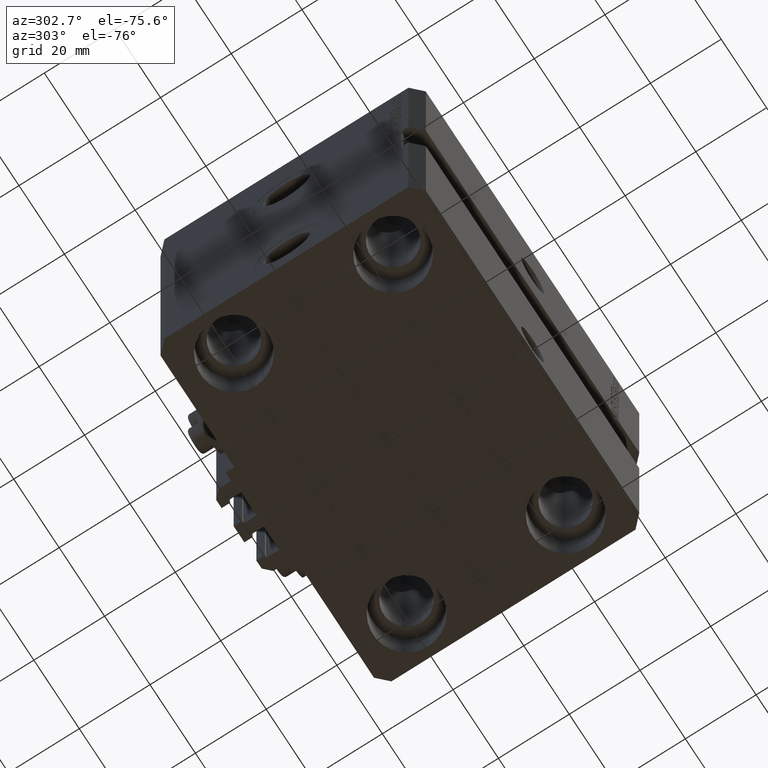
[diagram: clean part render]
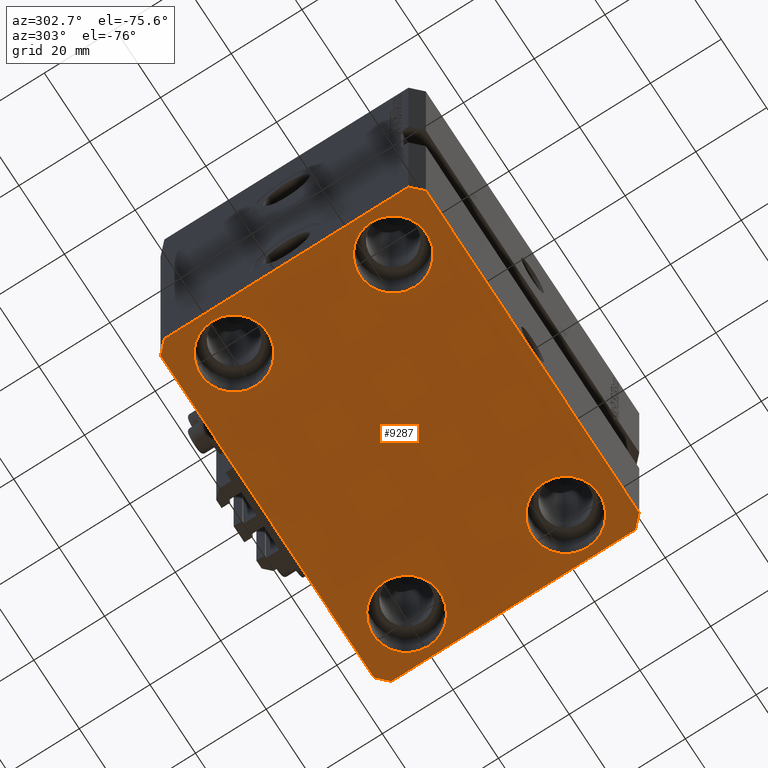
[diagram: same view with one face highlighted and labeled with its STEP entity id]
A machine part, auxiliary view. The second image highlights one B-rep face of the part: STEP entity #9287.
In plain terms, the highlighted planar face has unit normal (0, 0, 1).
Its self-contained STEP definition (entity closure, byte-faithful):
#60 = CIRCLE ( 'NONE', #37766, 9.500000000000001776 ) ;
#338 = CIRCLE ( 'NONE', #12662, 9.500000000000001776 ) ;
#417 = CARTESIAN_POINT ( 'NONE',  ( 50.00000000000000000, -34.50000000000000711, -95.00000000000000000 ) ) ;
#858 = EDGE_CURVE ( 'NONE', #11817, #13568, #9110, .T. ) ;
#1556 = CARTESIAN_POINT ( 'NONE',  ( -47.00000000000000000, -37.49999999999999289, -95.00000000000000000 ) ) ;
#1918 = EDGE_CURVE ( 'NONE', #29392, #29886, #8063, .T. ) ;
#2464 = DIRECTION ( 'NONE',  ( -0.000000000000000000, -0.000000000000000000, 1.000000000000000000 ) ) ;
#2788 = EDGE_CURVE ( 'NONE', #7448, #11817, #37458, .T. ) ;
#2796 = CARTESIAN_POINT ( 'NONE',  ( -38.00000000000000711, 22.50000000000000000, -95.00000000000000000 ) ) ;
#3186 = ORIENTED_EDGE ( 'NONE', *, *, #45625, .T. ) ;
#3401 = ORIENTED_EDGE ( 'NONE', *, *, #39046, .F. ) ;
#3502 = CARTESIAN_POINT ( 'NONE',  ( -38.00000000000000711, -22.50000000000000000, -95.00000000000000000 ) ) ;
#3969 = DIRECTION ( 'NONE',  ( -0.000000000000000000, -0.000000000000000000, 1.000000000000000000 ) ) ;
#4175 = VECTOR ( 'NONE', #28657, 1000.000000000000000 ) ;
#4279 = PLANE ( 'NONE',  #11616 ) ;
#4742 = CIRCLE ( 'NONE', #31675, 9.500000000000001776 ) ;
#5049 = EDGE_CURVE ( 'NONE', #38565, #16321, #60, .T. ) ;
#6074 = DIRECTION ( 'NONE',  ( 1.000000000000000000, 0.000000000000000000, 0.000000000000000000 ) ) ;
#6514 = LINE ( 'NONE', #21190, #4175 ) ;
#7412 = DIRECTION ( 'NONE',  ( 0.000000000000000000, 0.000000000000000000, 1.000000000000000000 ) ) ;
#7448 = VERTEX_POINT ( 'NONE', #33180 ) ;
#8056 = ORIENTED_EDGE ( 'NONE', *, *, #16957, .T. ) ;
#8063 = LINE ( 'NONE', #1556, #40715 ) ;
#8222 = VECTOR ( 'NONE', #8872, 1000.000000000000114 ) ;
#8525 = ORIENTED_EDGE ( 'NONE', *, *, #858, .F. ) ;
#8802 = CARTESIAN_POINT ( 'NONE',  ( 47.00000000000000000, -37.50000000000000711, -95.00000000000000000 ) ) ;
#8872 = DIRECTION ( 'NONE',  ( -0.7071067811865361374, 0.7071067811865588970, 0.000000000000000000 ) ) ;
#9110 = LINE ( 'NONE', #45982, #24515 ) ;
#9233 = VECTOR ( 'NONE', #16238, 1000.000000000000000 ) ;
#9287 = ADVANCED_FACE ( 'NONE', ( #40888, #44273, #26656, #15107, #22560 ), #4279, .F. ) ;
#9353 = CARTESIAN_POINT ( 'NONE',  ( 50.00000000000051870, 34.49999999999995026, -95.00000000000000000 ) ) ;
#9668 = DIRECTION ( 'NONE',  ( -0.000000000000000000, -0.000000000000000000, 1.000000000000000000 ) ) ;
#9712 = VERTEX_POINT ( 'NONE', #11087 ) ;
#10384 = AXIS2_PLACEMENT_3D ( 'NONE', #2796, #25810, #17477 ) ;
#10786 = CARTESIAN_POINT ( 'NONE',  ( -38.00000000000000711, -22.50000000000000000, -95.00000000000000000 ) ) ;
#10980 = EDGE_LOOP ( 'NONE', ( #14474, #40662, #11834, #3401, #36434, #45874, #8525, #13323 ) ) ;
#11087 = CARTESIAN_POINT ( 'NONE',  ( 47.50000000000000711, 22.50000000000001421, -95.00000000000000000 ) ) ;
#11616 = AXIS2_PLACEMENT_3D ( 'NONE', #11982, #7412, #41366 ) ;
#11817 = VERTEX_POINT ( 'NONE', #32368 ) ;
#11834 = ORIENTED_EDGE ( 'NONE', *, *, #45518, .F. ) ;
#11982 = CARTESIAN_POINT ( 'NONE',  ( 0.000000000000000000, 0.000000000000000000, -95.00000000000000000 ) ) ;
#12269 = DIRECTION ( 'NONE',  ( 1.000000000000000000, 0.000000000000000000, 0.000000000000000000 ) ) ;
#12662 = AXIS2_PLACEMENT_3D ( 'NONE', #16647, #9668, #31340 ) ;
#12686 = AXIS2_PLACEMENT_3D ( 'NONE', #10786, #31231, #45461 ) ;
#12962 = DIRECTION ( 'NONE',  ( 2.011273595335428326E-16, -1.000000000000000000, 0.000000000000000000 ) ) ;
#12984 = CARTESIAN_POINT ( 'NONE',  ( -47.50000000000000711, 22.50000000000000000, -95.00000000000000000 ) ) ;
#13057 = CARTESIAN_POINT ( 'NONE',  ( -38.00000000000000711, 22.50000000000000000, -95.00000000000000000 ) ) ;
#13133 = EDGE_CURVE ( 'NONE', #20686, #7448, #6514, .T. ) ;
#13323 = ORIENTED_EDGE ( 'NONE', *, *, #2788, .F. ) ;
#13568 = VERTEX_POINT ( 'NONE', #47344 ) ;
#14474 = ORIENTED_EDGE ( 'NONE', *, *, #13133, .F. ) ;
#14562 = DIRECTION ( 'NONE',  ( 1.000000000000000000, 0.000000000000000000, 0.000000000000000000 ) ) ;
#14830 = DIRECTION ( 'NONE',  ( 1.000000000000000000, 0.000000000000000000, 0.000000000000000000 ) ) ;
#15107 = FACE_BOUND ( 'NONE', #31979, .T. ) ;
#16065 = CARTESIAN_POINT ( 'NONE',  ( 50.00000000000000000, -34.50000000000000711, -95.00000000000000000 ) ) ;
#16238 = DIRECTION ( 'NONE',  ( -0.7071067811865483499, -0.7071067811865466846, 0.000000000000000000 ) ) ;
#16321 = VERTEX_POINT ( 'NONE', #46532 ) ;
#16647 = CARTESIAN_POINT ( 'NONE',  ( 38.00000000000000711, 22.50000000000001421, -95.00000000000000000 ) ) ;
#16658 = EDGE_CURVE ( 'NONE', #25071, #9712, #4742, .T. ) ;
#16957 = EDGE_CURVE ( 'NONE', #47651, #43668, #45516, .T. ) ;
#17477 = DIRECTION ( 'NONE',  ( 1.000000000000000000, 0.000000000000000000, 0.000000000000000000 ) ) ;
#18577 = VERTEX_POINT ( 'NONE', #12984 ) ;
#19288 = ORIENTED_EDGE ( 'NONE', *, *, #5049, .T. ) ;
#20110 = LINE ( 'NONE', #8802, #27531 ) ;
#20536 = VERTEX_POINT ( 'NONE', #16065 ) ;
#20686 = VERTEX_POINT ( 'NONE', #29746 ) ;
#21190 = CARTESIAN_POINT ( 'NONE',  ( 47.00000000000056843, 37.49999999999999289, -95.00000000000000000 ) ) ;
#21232 = DIRECTION ( 'NONE',  ( 0.7071067811865491270, -0.7071067811865459074, 0.000000000000000000 ) ) ;
#21812 = ORIENTED_EDGE ( 'NONE', *, *, #41879, .T. ) ;
#22560 = FACE_OUTER_BOUND ( 'NONE', #10980, .T. ) ;
#23331 = CARTESIAN_POINT ( 'NONE',  ( 38.00000000000000711, 22.50000000000001421, -95.00000000000000000 ) ) ;
#24500 = CARTESIAN_POINT ( 'NONE',  ( -28.50000000000000355, 22.50000000000000000, -95.00000000000000000 ) ) ;
#24515 = VECTOR ( 'NONE', #12962, 1000.000000000000000 ) ;
#24604 = CARTESIAN_POINT ( 'NONE',  ( -50.00000000000000000, -34.50000000000000000, -95.00000000000000000 ) ) ;
#24913 = ORIENTED_EDGE ( 'NONE', *, *, #16658, .T. ) ;
#25071 = VERTEX_POINT ( 'NONE', #42665 ) ;
#25529 = DIRECTION ( 'NONE',  ( -0.000000000000000000, -0.000000000000000000, 1.000000000000000000 ) ) ;
#25810 = DIRECTION ( 'NONE',  ( -0.000000000000000000, -0.000000000000000000, 1.000000000000000000 ) ) ;
#26512 = ORIENTED_EDGE ( 'NONE', *, *, #45884, .T. ) ;
#26656 = FACE_BOUND ( 'NONE', #38090, .T. ) ;
#27166 = LINE ( 'NONE', #9353, #8222 ) ;
#27531 = VECTOR ( 'NONE', #35045, 1000.000000000000000 ) ;
#27855 = CARTESIAN_POINT ( 'NONE',  ( -47.00000000000000000, -37.49999999999999289, -95.00000000000000000 ) ) ;
#28017 = VECTOR ( 'NONE', #29789, 1000.000000000000000 ) ;
#28657 = DIRECTION ( 'NONE',  ( -1.000000000000000000, 7.381802025433175941E-17, 0.000000000000000000 ) ) ;
#28805 = CIRCLE ( 'NONE', #10384, 9.500000000000001776 ) ;
#29188 = EDGE_LOOP ( 'NONE', ( #26512, #8056 ) ) ;
#29384 = AXIS2_PLACEMENT_3D ( 'NONE', #3502, #3969, #14562 ) ;
#29392 = VERTEX_POINT ( 'NONE', #27855 ) ;
#29439 = AXIS2_PLACEMENT_3D ( 'NONE', #13057, #2464, #6074 ) ;
#29746 = CARTESIAN_POINT ( 'NONE',  ( 47.00000000000056843, 37.49999999999999289, -95.00000000000000000 ) ) ;
#29789 = DIRECTION ( 'NONE',  ( 7.441712302741091634E-15, 1.000000000000000000, 0.000000000000000000 ) ) ;
#29886 = VERTEX_POINT ( 'NONE', #32599 ) ;
#30272 = LINE ( 'NONE', #417, #28017 ) ;
#31162 = CARTESIAN_POINT ( 'NONE',  ( -47.50000000000000711, -22.50000000000000000, -95.00000000000000000 ) ) ;
#31231 = DIRECTION ( 'NONE',  ( -0.000000000000000000, -0.000000000000000000, 1.000000000000000000 ) ) ;
#31340 = DIRECTION ( 'NONE',  ( 1.000000000000000000, 0.000000000000000000, 0.000000000000000000 ) ) ;
#31571 = CIRCLE ( 'NONE', #39258, 9.500000000000001776 ) ;
#31675 = AXIS2_PLACEMENT_3D ( 'NONE', #23331, #34663, #12269 ) ;
#31979 = EDGE_LOOP ( 'NONE', ( #21812, #3186 ) ) ;
#32368 = CARTESIAN_POINT ( 'NONE',  ( -50.00000000000001421, 34.50000000000000000, -95.00000000000000000 ) ) ;
#32512 = CIRCLE ( 'NONE', #29439, 9.500000000000001776 ) ;
#32561 = ORIENTED_EDGE ( 'NONE', *, *, #40993, .T. ) ;
#32599 = CARTESIAN_POINT ( 'NONE',  ( 47.00000000000000000, -37.50000000000000711, -95.00000000000000000 ) ) ;
#32604 = EDGE_CURVE ( 'NONE', #43595, #20686, #27166, .T. ) ;
#33180 = CARTESIAN_POINT ( 'NONE',  ( -47.00000000000001421, 37.50000000000000000, -95.00000000000000000 ) ) ;
#34061 = DIRECTION ( 'NONE',  ( 1.000000000000000000, -1.476360405086644309E-16, 0.000000000000000000 ) ) ;
#34534 = CARTESIAN_POINT ( 'NONE',  ( 50.00000000000051870, 34.49999999999995026, -95.00000000000000000 ) ) ;
#34660 = VERTEX_POINT ( 'NONE', #24500 ) ;
#34663 = DIRECTION ( 'NONE',  ( -0.000000000000000000, -0.000000000000000000, 1.000000000000000000 ) ) ;
#35045 = DIRECTION ( 'NONE',  ( 0.7071067811865483499, 0.7071067811865466846, 0.000000000000000000 ) ) ;
#36401 = ORIENTED_EDGE ( 'NONE', *, *, #44941, .T. ) ;
#36434 = ORIENTED_EDGE ( 'NONE', *, *, #1918, .F. ) ;
#37458 = LINE ( 'NONE', #38413, #9233 ) ;
#37766 = AXIS2_PLACEMENT_3D ( 'NONE', #39912, #43296, #14830 ) ;
#38090 = EDGE_LOOP ( 'NONE', ( #24913, #36401 ) ) ;
#38413 = CARTESIAN_POINT ( 'NONE',  ( -47.00000000000001421, 37.50000000000000000, -95.00000000000000000 ) ) ;
#38565 = VERTEX_POINT ( 'NONE', #41381 ) ;
#38834 = CIRCLE ( 'NONE', #12686, 9.500000000000001776 ) ;
#39046 = EDGE_CURVE ( 'NONE', #29886, #20536, #20110, .T. ) ;
#39136 = VECTOR ( 'NONE', #21232, 1000.000000000000114 ) ;
#39258 = AXIS2_PLACEMENT_3D ( 'NONE', #44574, #25529, #40243 ) ;
#39484 = EDGE_CURVE ( 'NONE', #13568, #29392, #42707, .T. ) ;
#39912 = CARTESIAN_POINT ( 'NONE',  ( 38.00000000000000711, -22.50000000000000000, -95.00000000000000000 ) ) ;
#40243 = DIRECTION ( 'NONE',  ( 1.000000000000000000, 0.000000000000000000, 0.000000000000000000 ) ) ;
#40662 = ORIENTED_EDGE ( 'NONE', *, *, #32604, .F. ) ;
#40715 = VECTOR ( 'NONE', #34061, 1000.000000000000000 ) ;
#40888 = FACE_BOUND ( 'NONE', #29188, .T. ) ;
#40993 = EDGE_CURVE ( 'NONE', #16321, #38565, #31571, .T. ) ;
#41332 = CARTESIAN_POINT ( 'NONE',  ( -28.50000000000000355, -22.50000000000000000, -95.00000000000000000 ) ) ;
#41366 = DIRECTION ( 'NONE',  ( 1.000000000000000000, 0.000000000000000000, -0.000000000000000000 ) ) ;
#41381 = CARTESIAN_POINT ( 'NONE',  ( 28.50000000000000355, -22.50000000000000000, -95.00000000000000000 ) ) ;
#41767 = EDGE_LOOP ( 'NONE', ( #19288, #32561 ) ) ;
#41879 = EDGE_CURVE ( 'NONE', #18577, #34660, #32512, .T. ) ;
#42665 = CARTESIAN_POINT ( 'NONE',  ( 28.50000000000000355, 22.50000000000001421, -95.00000000000000000 ) ) ;
#42707 = LINE ( 'NONE', #24604, #39136 ) ;
#43296 = DIRECTION ( 'NONE',  ( -0.000000000000000000, -0.000000000000000000, 1.000000000000000000 ) ) ;
#43595 = VERTEX_POINT ( 'NONE', #34534 ) ;
#43668 = VERTEX_POINT ( 'NONE', #31162 ) ;
#44273 = FACE_BOUND ( 'NONE', #41767, .T. ) ;
#44574 = CARTESIAN_POINT ( 'NONE',  ( 38.00000000000000711, -22.50000000000000000, -95.00000000000000000 ) ) ;
#44941 = EDGE_CURVE ( 'NONE', #9712, #25071, #338, .T. ) ;
#45461 = DIRECTION ( 'NONE',  ( 1.000000000000000000, 0.000000000000000000, 0.000000000000000000 ) ) ;
#45516 = CIRCLE ( 'NONE', #29384, 9.500000000000001776 ) ;
#45518 = EDGE_CURVE ( 'NONE', #20536, #43595, #30272, .T. ) ;
#45625 = EDGE_CURVE ( 'NONE', #34660, #18577, #28805, .T. ) ;
#45874 = ORIENTED_EDGE ( 'NONE', *, *, #39484, .F. ) ;
#45884 = EDGE_CURVE ( 'NONE', #43668, #47651, #38834, .T. ) ;
#45982 = CARTESIAN_POINT ( 'NONE',  ( -50.00000000000001421, 34.50000000000000000, -95.00000000000000000 ) ) ;
#46532 = CARTESIAN_POINT ( 'NONE',  ( 47.50000000000000711, -22.50000000000000000, -95.00000000000000000 ) ) ;
#47344 = CARTESIAN_POINT ( 'NONE',  ( -50.00000000000000000, -34.50000000000000000, -95.00000000000000000 ) ) ;
#47651 = VERTEX_POINT ( 'NONE', #41332 ) ;